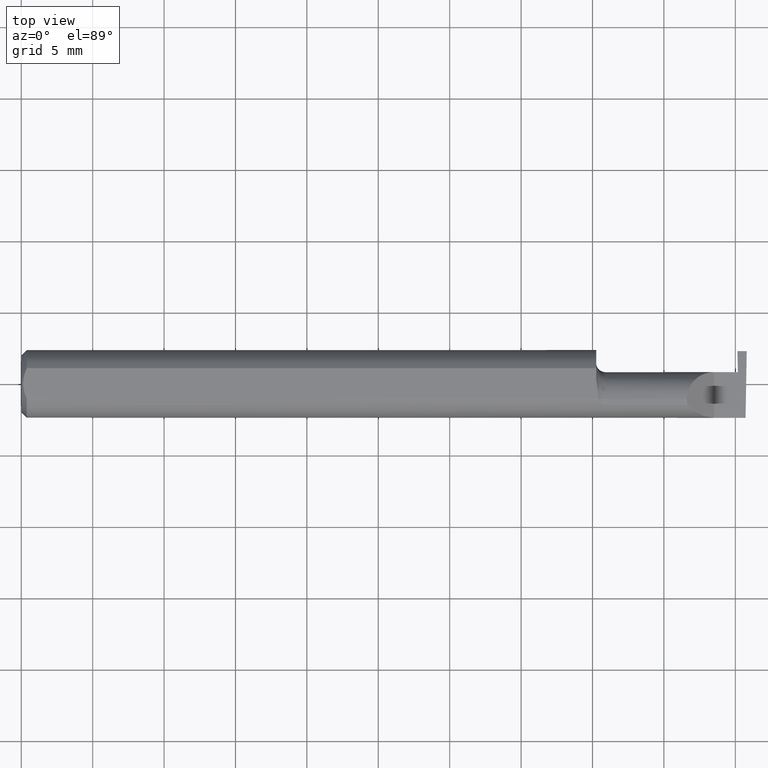
[diagram: clean part render]
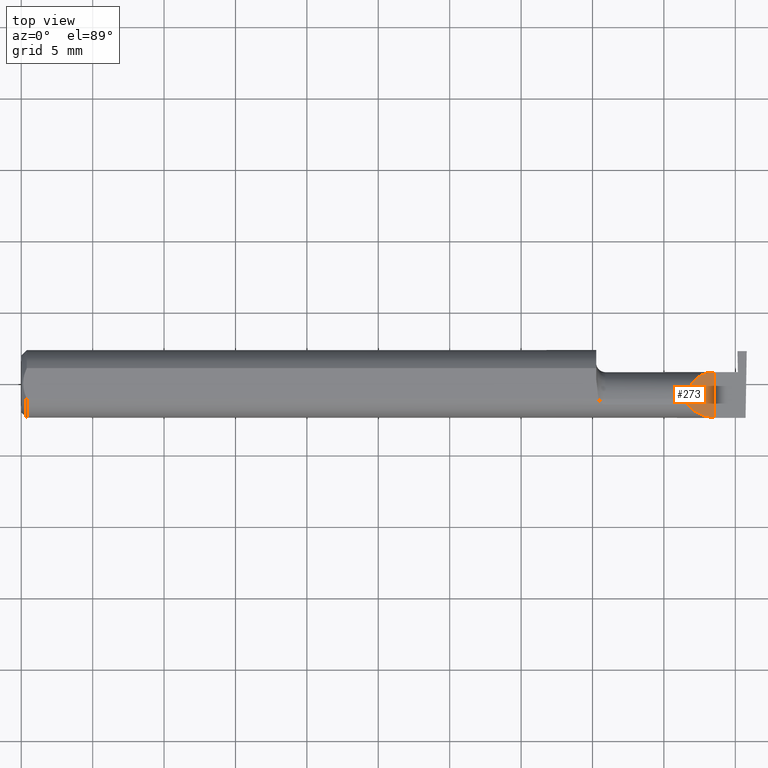
[diagram: same view with one face highlighted and labeled with its STEP entity id]
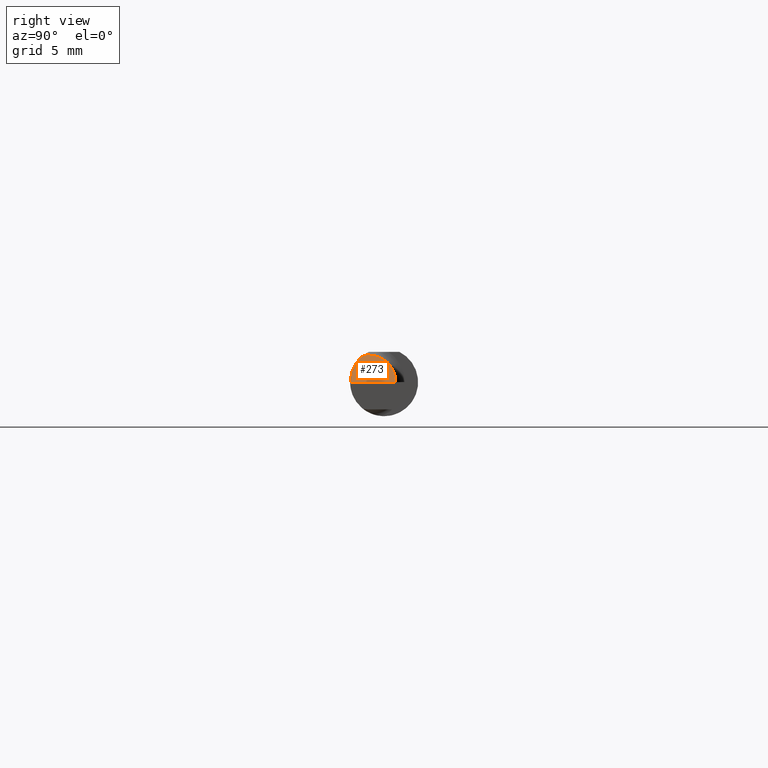
[diagram: same view with one face highlighted and labeled with its STEP entity id]
A machine part, top view. The second image highlights one B-rep face of the part: STEP entity #273.
A second angle (right view) of the same face is appended — the face is thin or edge-on in the first view.
In plain terms, the highlighted planar face has unit normal (-0.7071, 0, -0.7071).
Its self-contained STEP definition (entity closure, byte-faithful):
#27 = CARTESIAN_POINT ( 'NONE',  ( 1.835000000000000409, -0.04259999999999998510, 0.07499999999999999722 ) ) ;
#48 = EDGE_CURVE ( 'NONE', #406, #508, #726, .T. ) ;
#88 = DIRECTION ( 'NONE',  ( -0.7071067811865490160, 0.000000000000000000, -0.7071067811865460184 ) ) ;
#90 = CARTESIAN_POINT ( 'NONE',  ( 1.836620632051322310, -0.05810704225352113922, 0.07337936794867826185 ) ) ;
#91 = PLANE ( 'NONE',  #328 ) ;
#97 = CARTESIAN_POINT ( 'NONE',  ( 1.910000000000000142, -0.09359999999999998876, 1.102182119232621301E-17 ) ) ;
#112 = CARTESIAN_POINT ( 'NONE',  ( 1.880893035518783396, -0.09359999999999998876, 0.02910696448121675300 ) ) ;
#142 = CARTESIAN_POINT ( 'NONE',  ( 1.835000000000000409, -0.04259999999999998510, 0.07499999999999999722 ) ) ;
#175 = VERTEX_POINT ( 'NONE', #266 ) ;
#186 = DIRECTION ( 'NONE',  ( -0.000000000000000000, 1.000000000000000000, -0.000000000000000000 ) ) ;
#191 = ORIENTED_EDGE ( 'NONE', *, *, #610, .F. ) ;
#210 = CARTESIAN_POINT ( 'NONE',  ( 1.835000000000000187, 0.001333982822017879596, 0.07499999999999998335 ) ) ;
#226 = CARTESIAN_POINT ( 'NONE',  ( 1.910000000000000142, -0.09359999999999998876, 1.102182119232621301E-17 ) ) ;
#266 = CARTESIAN_POINT ( 'NONE',  ( 1.836620632051322310, -0.05810704225352113922, 0.07337936794867826185 ) ) ;
#268 = CARTESIAN_POINT ( 'NONE',  ( 1.835542168554754827, -0.05300374992736064245, 0.07445783144524570352 ) ) ;
#273 = ADVANCED_FACE ( 'NONE', ( #395 ), #91, .F. ) ;
#285 = CARTESIAN_POINT ( 'NONE',  ( 1.854690286057537829, -0.08092595952420826577, 0.05530971394246238237 ) ) ;
#328 = AXIS2_PLACEMENT_3D ( 'NONE', #633, #88, #336 ) ;
#336 = DIRECTION ( 'NONE',  ( -0.7071067811865460184, 0.000000000000000000, 0.7071067811865490160 ) ) ;
#355 = CARTESIAN_POINT ( 'NONE',  ( 1.836620632051322310, -0.05810704225352113922, 0.07337936794867826185 ) ) ;
#388 = CARTESIAN_POINT ( 'NONE',  ( 1.866066017177982594, 0.03240000000000000518, 0.04393398282201787380 ) ) ;
#395 = FACE_OUTER_BOUND ( 'NONE', #434, .T. ) ;
#406 = VERTEX_POINT ( 'NONE', #97 ) ;
#414 =( BOUNDED_CURVE ( )  B_SPLINE_CURVE ( 3, ( #90, #268, #509, #754 ),
 .UNSPECIFIED., .F., .F. ) 
 B_SPLINE_CURVE_WITH_KNOTS ( ( 4, 4 ),
 ( 6.074922494366329140, 6.283185307179586232 ),
 .UNSPECIFIED. ) 
 CURVE ( )  GEOMETRIC_REPRESENTATION_ITEM ( )  RATIONAL_B_SPLINE_CURVE ( ( 1.000000000000000000, 0.9963888149483995926, 0.9963888149483995926, 1.000000000000000000 ) ) 
 REPRESENTATION_ITEM ( '' )  );
#434 = EDGE_LOOP ( 'NONE', ( #591, #722, #568, #191 ) ) ;
#463 = VECTOR ( 'NONE', #186, 39.37007874015748143 ) ;
#483 = CARTESIAN_POINT ( 'NONE',  ( 1.910000000000000142, -0.1000000000000000056, 1.102182119232621301E-17 ) ) ;
#493 =( BOUNDED_CURVE ( )  B_SPLINE_CURVE ( 3, ( #226, #112, #285, #355 ),
 .UNSPECIFIED., .F., .T. ) 
 B_SPLINE_CURVE_WITH_KNOTS ( ( 4, 4 ),
 ( 4.712388980384689674, 5.613420356061718408 ),
 .UNSPECIFIED. ) 
 CURVE ( )  GEOMETRIC_REPRESENTATION_ITEM ( )  RATIONAL_B_SPLINE_CURVE ( ( 1.000000000000000000, 0.9334817841311876530, 0.9334817841311876530, 1.000000000000000000 ) ) 
 REPRESENTATION_ITEM ( '' )  );
#508 = VERTEX_POINT ( 'NONE', #597 ) ;
#509 = CARTESIAN_POINT ( 'NONE',  ( 1.835000000000000409, -0.04781600192481531147, 0.07499999999999999722 ) ) ;
#568 = ORIENTED_EDGE ( 'NONE', *, *, #48, .T. ) ;
#591 = ORIENTED_EDGE ( 'NONE', *, *, #661, .F. ) ;
#597 = CARTESIAN_POINT ( 'NONE',  ( 1.910000000000000142, 0.03240000000000002600, 1.102182119232621301E-17 ) ) ;
#610 = EDGE_CURVE ( 'NONE', #663, #508, #652, .T. ) ;
#633 = CARTESIAN_POINT ( 'NONE',  ( 1.910000000000000142, -0.1000000000000000056, 1.102182119232621301E-17 ) ) ;
#637 = CARTESIAN_POINT ( 'NONE',  ( 1.910000000000000142, 0.03240000000000002600, 1.102182119232621301E-17 ) ) ;
#652 =( BOUNDED_CURVE ( )  B_SPLINE_CURVE ( 3, ( #142, #210, #388, #637 ),
 .UNSPECIFIED., .F., .T. ) 
 B_SPLINE_CURVE_WITH_KNOTS ( ( 4, 4 ),
 ( 0.000000000000000000, 1.570796326794896558 ),
 .UNSPECIFIED. ) 
 CURVE ( )  GEOMETRIC_REPRESENTATION_ITEM ( )  RATIONAL_B_SPLINE_CURVE ( ( 1.000000000000000000, 0.8047378541243649375, 0.8047378541243649375, 1.000000000000000000 ) ) 
 REPRESENTATION_ITEM ( '' )  );
#661 = EDGE_CURVE ( 'NONE', #175, #663, #414, .T. ) ;
#663 = VERTEX_POINT ( 'NONE', #27 ) ;
#718 = EDGE_CURVE ( 'NONE', #406, #175, #493, .T. ) ;
#722 = ORIENTED_EDGE ( 'NONE', *, *, #718, .F. ) ;
#726 = LINE ( 'NONE', #483, #463 ) ;
#754 = CARTESIAN_POINT ( 'NONE',  ( 1.835000000000000409, -0.04259999999999998510, 0.07499999999999999722 ) ) ;